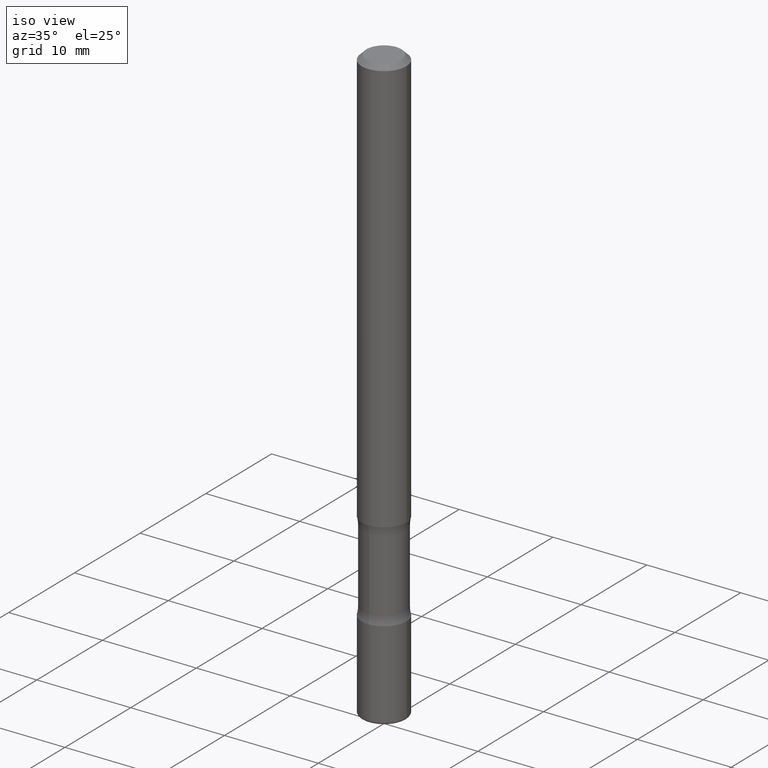
[diagram: clean part render]
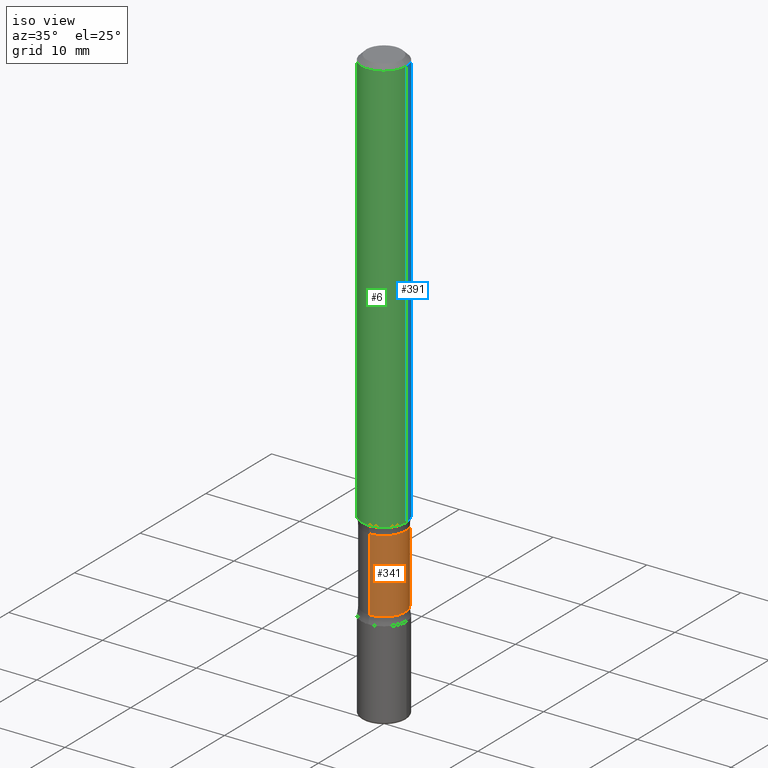
[diagram: same view with three faces highlighted in distinct colors, each labeled with its STEP entity id]
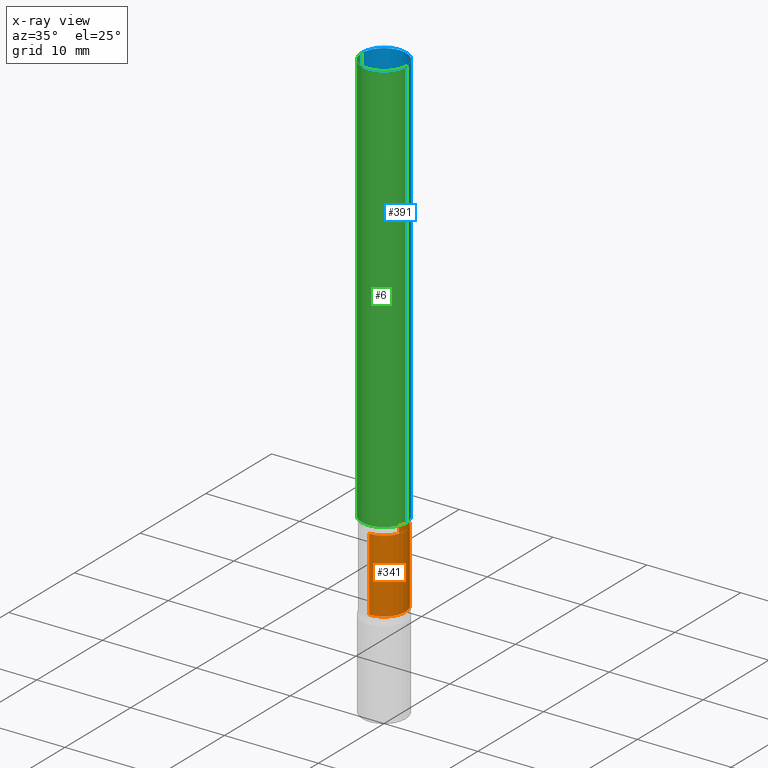
[diagram: x-ray of the same camera — body ghosted, the three highlighted faces saturated]
A machine part, iso view with three faces highlighted in distinct colors.
The next image is the same camera in x-ray (body ghosted, the three faces saturated) — at least one of them is partly hidden behind the body in this view.
Their STEP definitions:

[orange] entity #341 — the highlighted cylindrical surface (edge-blend (fillet) strip) has radius 2.2622 mm, axis along (0, -0, -1).
#37 = DIRECTION ( 'NONE',  ( 2.553476385947133355E-29, -3.336808337214295667E-15, -1.000000000000000000 ) ) ;
#47 = CARTESIAN_POINT ( 'NONE',  ( -6.110131029264649859E-16, -0.08906250000000860700, -2.499999999999999556 ) ) ;
#49 = ORIENTED_EDGE ( 'NONE', *, *, #113, .F. ) ;
#84 = ORIENTED_EDGE ( 'NONE', *, *, #433, .T. ) ;
#85 = VERTEX_POINT ( 'NONE', #477 ) ;
#86 = DIRECTION ( 'NONE',  ( 2.553476385947133355E-29, -3.336808337214295667E-15, -1.000000000000000000 ) ) ;
#92 = LINE ( 'NONE', #47, #522 ) ;
#93 = VERTEX_POINT ( 'NONE', #314 ) ;
#94 = CARTESIAN_POINT ( 'NONE',  ( 5.110032292609207884E-29, -7.306245973522905960E-15, -2.091089789977795821 ) ) ;
#103 = CARTESIAN_POINT ( 'NONE',  ( -6.270923951087521301E-16, -0.08906250000000723310, -2.091089789977795377 ) ) ;
#112 = AXIS2_PLACEMENT_3D ( 'NONE', #171, #37, #557 ) ;
#113 = EDGE_CURVE ( 'NONE', #383, #170, #490, .T. ) ;
#118 = CYLINDRICAL_SURFACE ( 'NONE', #112, 0.08906249999999993339 ) ;
#170 = VERTEX_POINT ( 'NONE', #103 ) ;
#171 = CARTESIAN_POINT ( 'NONE',  ( 6.154174857873591467E-29, -8.670700971497045879E-15, -2.500000000000000000 ) ) ;
#203 = ORIENTED_EDGE ( 'NONE', *, *, #368, .F. ) ;
#250 = FACE_OUTER_BOUND ( 'NONE', #267, .T. ) ;
#259 = ORIENTED_EDGE ( 'NONE', *, *, #536, .T. ) ;
#267 = EDGE_LOOP ( 'NONE', ( #259, #84, #49, #203 ) ) ;
#271 = DIRECTION ( 'NONE',  ( 6.982962677686265133E-15, 1.000000000000000000, -3.067338098149349877E-15 ) ) ;
#314 = CARTESIAN_POINT ( 'NONE',  ( 6.219201134814759246E-16, 0.08906249999999366063, -1.783910210022204845 ) ) ;
#315 = CARTESIAN_POINT ( 'NONE',  ( 6.219201134814836160E-16, 0.08906249999999261979, -2.091089789977795821 ) ) ;
#327 = AXIS2_PLACEMENT_3D ( 'NONE', #94, #524, #466 ) ;
#341 = ADVANCED_FACE ( 'NONE', ( #250 ), #118, .T. ) ;
#344 = CARTESIAN_POINT ( 'NONE',  ( 6.219201134814940684E-16, 0.08906249999999125977, -2.500000000000000444 ) ) ;
#368 = EDGE_CURVE ( 'NONE', #93, #383, #560, .T. ) ;
#381 = DIRECTION ( 'NONE',  ( 2.553476385947133355E-29, -3.336808337214295667E-15, -1.000000000000000000 ) ) ;
#383 = VERTEX_POINT ( 'NONE', #315 ) ;
#388 = CIRCLE ( 'NONE', #418, 0.08906249999999994726 ) ;
#395 = DIRECTION ( 'NONE',  ( 2.553476385947133355E-29, -3.336808337214295667E-15, -1.000000000000000000 ) ) ;
#417 = VECTOR ( 'NONE', #86, 39.37007874015748143 ) ;
#418 = AXIS2_PLACEMENT_3D ( 'NONE', #478, #395, #271 ) ;
#433 = EDGE_CURVE ( 'NONE', #85, #170, #92, .T. ) ;
#466 = DIRECTION ( 'NONE',  ( 6.982962677686265133E-15, 1.000000000000000000, -3.067338098149350666E-15 ) ) ;
#477 = CARTESIAN_POINT ( 'NONE',  ( -6.270923951087611034E-16, -0.08906250000000623390, -1.783910210022204401 ) ) ;
#478 = CARTESIAN_POINT ( 'NONE',  ( 4.325656488947447574E-29, -6.281246590105103764E-15, -1.783910210022204623 ) ) ;
#490 = CIRCLE ( 'NONE', #327, 0.08906249999999993339 ) ;
#522 = VECTOR ( 'NONE', #381, 39.37007874015748143 ) ;
#524 = DIRECTION ( 'NONE',  ( 2.553476385947133355E-29, -3.336808337214295667E-15, -1.000000000000000000 ) ) ;
#536 = EDGE_CURVE ( 'NONE', #93, #85, #388, .T. ) ;
#557 = DIRECTION ( 'NONE',  ( 6.982962677686265133E-15, 1.000000000000000000, -6.134676196298701332E-15 ) ) ;
#560 = LINE ( 'NONE', #344, #417 ) ;

[blue] entity #391 — the highlighted cylindrical surface (edge-blend (fillet) strip) has radius 2.3812 mm, axis along (-0, 0, 1).
#9 = DIRECTION ( 'NONE',  ( -2.445468806185136877E-29, 3.491481338843145188E-15, 1.000000000000000000 ) ) ;
#20 = EDGE_CURVE ( 'NONE', #336, #330, #447, .T. ) ;
#27 = DIRECTION ( 'NONE',  ( -2.445468806185136597E-29, 3.491481338843145583E-15, 1.000000000000000000 ) ) ;
#30 = ORIENTED_EDGE ( 'NONE', *, *, #20, .T. ) ;
#50 = CARTESIAN_POINT ( 'NONE',  ( -0.09374999999999981959, 5.848231242562233185E-16, -0.02000000000000001776 ) ) ;
#59 = EDGE_CURVE ( 'NONE', #127, #152, #482, .T. ) ;
#82 = EDGE_CURVE ( 'NONE', #330, #152, #416, .T. ) ;
#98 = ORIENTED_EDGE ( 'NONE', *, *, #257, .F. ) ;
#111 = CARTESIAN_POINT ( 'NONE',  ( 4.279570410823988484E-29, -6.110092342975504671E-15, -1.750000000000000000 ) ) ;
#119 = DIRECTION ( 'NONE',  ( 1.000000000000000000, -6.982962677686267499E-15, 0.000000000000000000 ) ) ;
#127 = VERTEX_POINT ( 'NONE', #265 ) ;
#152 = VERTEX_POINT ( 'NONE', #50 ) ;
#199 = AXIS2_PLACEMENT_3D ( 'NONE', #247, #461, #119 ) ;
#211 = CARTESIAN_POINT ( 'NONE',  ( -0.09375000000000004163, -2.423827170101085722E-15, -1.750000000000000000 ) ) ;
#222 = CYLINDRICAL_SURFACE ( 'NONE', #393, 0.09374999999999991673 ) ;
#228 = DIRECTION ( 'NONE',  ( -2.445468806185136597E-29, 3.491481338843145583E-15, 1.000000000000000000 ) ) ;
#233 = AXIS2_PLACEMENT_3D ( 'NONE', #111, #27, #398 ) ;
#247 = CARTESIAN_POINT ( 'NONE',  ( 4.890937612370276662E-31, -6.982962677686296539E-17, -0.02000000000000001776 ) ) ;
#248 = ORIENTED_EDGE ( 'NONE', *, *, #59, .F. ) ;
#253 = VECTOR ( 'NONE', #9, 39.37007874015748143 ) ;
#257 = EDGE_CURVE ( 'NONE', #336, #127, #521, .T. ) ;
#265 = CARTESIAN_POINT ( 'NONE',  ( 0.09374999999999981959, -7.130013140679428044E-16, -0.02000000000000001776 ) ) ;
#268 = CARTESIAN_POINT ( 'NONE',  ( -0.09374999999999991673, 6.661338147750933326E-16, -4.611501647113969791E-30 ) ) ;
#306 = DIRECTION ( 'NONE',  ( 1.000000000000000000, -6.982962677686266711E-15, 4.876176775795935793E-29 ) ) ;
#330 = VERTEX_POINT ( 'NONE', #211 ) ;
#336 = VERTEX_POINT ( 'NONE', #549 ) ;
#340 = VECTOR ( 'NONE', #427, 39.37007874015748143 ) ;
#377 = EDGE_LOOP ( 'NONE', ( #30, #508, #248, #98 ) ) ;
#379 = CARTESIAN_POINT ( 'NONE',  ( 0.000000000000000000, 0.000000000000000000, 0.000000000000000000 ) ) ;
#391 = ADVANCED_FACE ( 'NONE', ( #435 ), #222, .T. ) ;
#393 = AXIS2_PLACEMENT_3D ( 'NONE', #379, #228, #306 ) ;
#398 = DIRECTION ( 'NONE',  ( 1.000000000000000000, -6.982962677686269866E-15, 0.000000000000000000 ) ) ;
#416 = LINE ( 'NONE', #268, #340 ) ;
#427 = DIRECTION ( 'NONE',  ( -2.445468806185136877E-29, 3.491481338843145188E-15, 1.000000000000000000 ) ) ;
#435 = FACE_OUTER_BOUND ( 'NONE', #377, .T. ) ;
#447 = CIRCLE ( 'NONE', #233, 0.09375000000000004163 ) ;
#461 = DIRECTION ( 'NONE',  ( -2.445468806185136597E-29, 3.491481338843145583E-15, 1.000000000000000000 ) ) ;
#467 = CARTESIAN_POINT ( 'NONE',  ( 0.09374999999999991673, -6.546527510330869125E-16, 4.571415727308685602E-30 ) ) ;
#482 = CIRCLE ( 'NONE', #199, 0.09374999999999981959 ) ;
#508 = ORIENTED_EDGE ( 'NONE', *, *, #82, .T. ) ;
#521 = LINE ( 'NONE', #467, #253 ) ;
#549 = CARTESIAN_POINT ( 'NONE',  ( 0.09375000000000004163, -6.764745094008592175E-15, -1.750000000000000000 ) ) ;

[green] entity #6 — the highlighted cylindrical surface (edge-blend (fillet) strip) has radius 2.3812 mm, axis along (-0, 0, 1).
#6 = ADVANCED_FACE ( 'NONE', ( #497 ), #24, .T. ) ;
#8 = CIRCLE ( 'NONE', #387, 0.09374999999999981959 ) ;
#9 = DIRECTION ( 'NONE',  ( -2.445468806185136877E-29, 3.491481338843145188E-15, 1.000000000000000000 ) ) ;
#24 = CYLINDRICAL_SURFACE ( 'NONE', #110, 0.09374999999999991673 ) ;
#34 = ORIENTED_EDGE ( 'NONE', *, *, #82, .F. ) ;
#50 = CARTESIAN_POINT ( 'NONE',  ( -0.09374999999999981959, 5.848231242562233185E-16, -0.02000000000000001776 ) ) ;
#68 = DIRECTION ( 'NONE',  ( -2.445468806185136597E-29, 3.491481338843145583E-15, 1.000000000000000000 ) ) ;
#82 = EDGE_CURVE ( 'NONE', #330, #152, #416, .T. ) ;
#104 = ORIENTED_EDGE ( 'NONE', *, *, #311, .F. ) ;
#110 = AXIS2_PLACEMENT_3D ( 'NONE', #328, #68, #494 ) ;
#127 = VERTEX_POINT ( 'NONE', #265 ) ;
#152 = VERTEX_POINT ( 'NONE', #50 ) ;
#211 = CARTESIAN_POINT ( 'NONE',  ( -0.09375000000000004163, -2.423827170101085722E-15, -1.750000000000000000 ) ) ;
#243 = DIRECTION ( 'NONE',  ( -2.445468806185136597E-29, 3.491481338843145583E-15, 1.000000000000000000 ) ) ;
#245 = DIRECTION ( 'NONE',  ( -2.445468806185136597E-29, 3.491481338843145583E-15, 1.000000000000000000 ) ) ;
#253 = VECTOR ( 'NONE', #9, 39.37007874015748143 ) ;
#257 = EDGE_CURVE ( 'NONE', #336, #127, #521, .T. ) ;
#265 = CARTESIAN_POINT ( 'NONE',  ( 0.09374999999999981959, -7.130013140679428044E-16, -0.02000000000000001776 ) ) ;
#268 = CARTESIAN_POINT ( 'NONE',  ( -0.09374999999999991673, 6.661338147750933326E-16, -4.611501647113969791E-30 ) ) ;
#311 = EDGE_CURVE ( 'NONE', #152, #127, #8, .T. ) ;
#323 = ORIENTED_EDGE ( 'NONE', *, *, #257, .T. ) ;
#324 = CARTESIAN_POINT ( 'NONE',  ( 4.279570410823988484E-29, -6.110092342975504671E-15, -1.750000000000000000 ) ) ;
#328 = CARTESIAN_POINT ( 'NONE',  ( 0.000000000000000000, 0.000000000000000000, 0.000000000000000000 ) ) ;
#330 = VERTEX_POINT ( 'NONE', #211 ) ;
#336 = VERTEX_POINT ( 'NONE', #549 ) ;
#340 = VECTOR ( 'NONE', #427, 39.37007874015748143 ) ;
#346 = EDGE_LOOP ( 'NONE', ( #34, #476, #323, #104 ) ) ;
#376 = CIRCLE ( 'NONE', #534, 0.09375000000000004163 ) ;
#387 = AXIS2_PLACEMENT_3D ( 'NONE', #449, #245, #413 ) ;
#413 = DIRECTION ( 'NONE',  ( 1.000000000000000000, -6.982962677686267499E-15, 0.000000000000000000 ) ) ;
#416 = LINE ( 'NONE', #268, #340 ) ;
#427 = DIRECTION ( 'NONE',  ( -2.445468806185136877E-29, 3.491481338843145188E-15, 1.000000000000000000 ) ) ;
#449 = CARTESIAN_POINT ( 'NONE',  ( 4.890937612370276662E-31, -6.982962677686296539E-17, -0.02000000000000001776 ) ) ;
#467 = CARTESIAN_POINT ( 'NONE',  ( 0.09374999999999991673, -6.546527510330869125E-16, 4.571415727308685602E-30 ) ) ;
#476 = ORIENTED_EDGE ( 'NONE', *, *, #498, .T. ) ;
#494 = DIRECTION ( 'NONE',  ( 1.000000000000000000, -6.982962677686266711E-15, 4.876176775795935793E-29 ) ) ;
#497 = FACE_OUTER_BOUND ( 'NONE', #346, .T. ) ;
#498 = EDGE_CURVE ( 'NONE', #330, #336, #376, .T. ) ;
#504 = DIRECTION ( 'NONE',  ( 1.000000000000000000, -6.982962677686269866E-15, 0.000000000000000000 ) ) ;
#521 = LINE ( 'NONE', #467, #253 ) ;
#534 = AXIS2_PLACEMENT_3D ( 'NONE', #324, #243, #504 ) ;
#549 = CARTESIAN_POINT ( 'NONE',  ( 0.09375000000000004163, -6.764745094008592175E-15, -1.750000000000000000 ) ) ;